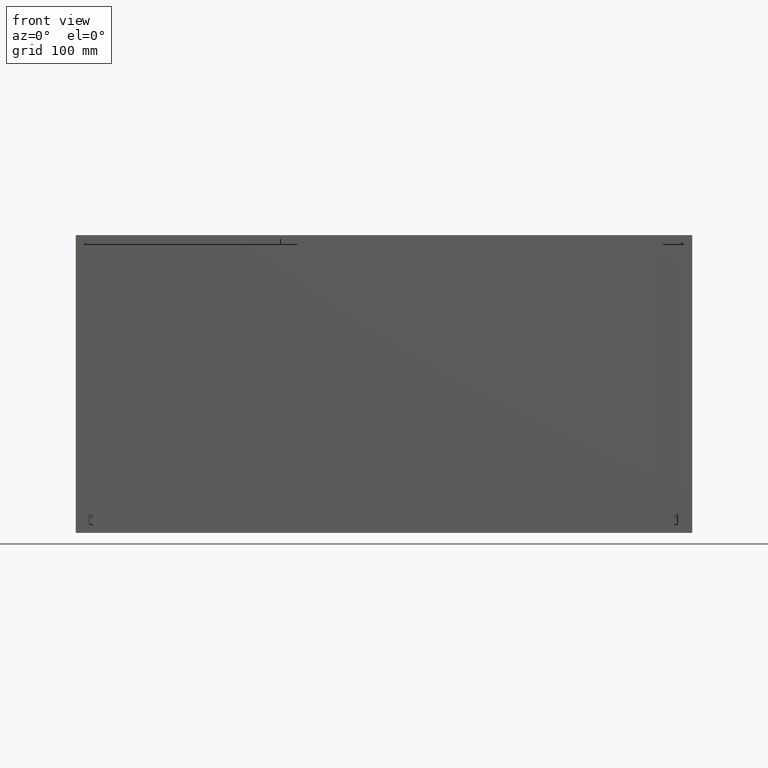
[diagram: clean part render]
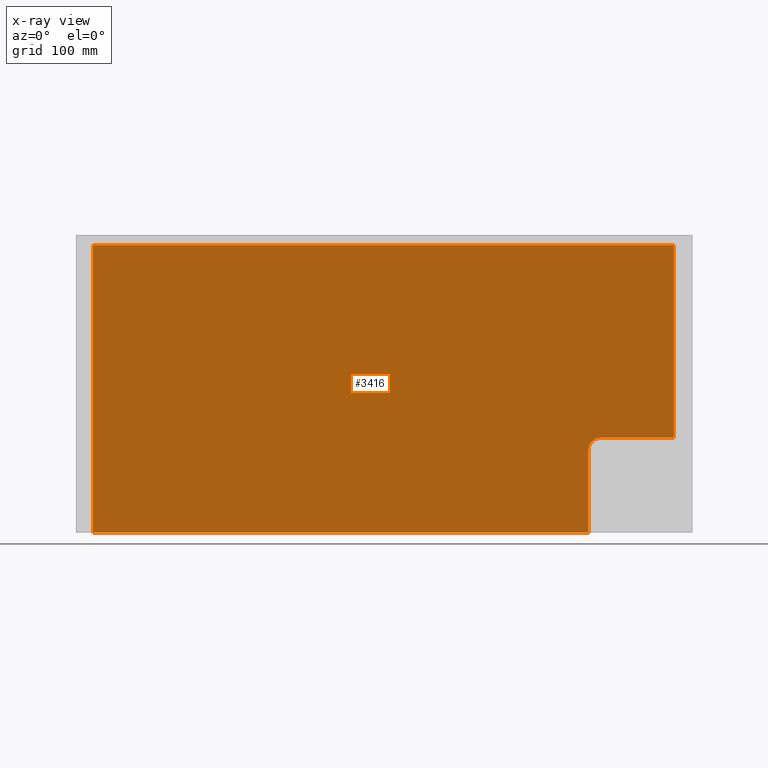
[diagram: x-ray — body ghosted, one internal face saturated and labeled with its STEP entity id]
A machine part, front view, then the same camera in x-ray: the body is ghosted and one INTERNAL B-rep face — a face not visible from any outside direction — is saturated and labeled: STEP entity #3416.
In plain terms, the highlighted planar face has unit normal (0, 1, 0).
Its self-contained STEP definition (entity closure, byte-faithful):
#286 = CARTESIAN_POINT ( 'NONE',  ( 831.0000000000000000, 292.0000000000000000, -319.9999999999999432 ) ) ;
#550 = VECTOR ( 'NONE', #4517, 1000.000000000000000 ) ;
#1174 = VECTOR ( 'NONE', #6721, 1000.000000000000000 ) ;
#1360 = CARTESIAN_POINT ( 'NONE',  ( 946.0000000000001137, 292.0000000000000000, -470.0000000000000000 ) ) ;
#1685 = EDGE_CURVE ( 'NONE', #15144, #14750, #12803, .T. ) ;
#1835 = CARTESIAN_POINT ( 'NONE',  ( 29.00000000000002487, 292.0000000000000000, -470.0000000000000000 ) ) ;
#2232 = VECTOR ( 'NONE', #6241, 1000.000000000000000 ) ;
#2384 = DIRECTION ( 'NONE',  ( 0.0000000000000000000, 0.0000000000000000000, 1.000000000000000000 ) ) ;
#2469 = DIRECTION ( 'NONE',  ( 0.0000000000000000000, 1.000000000000000000, 0.0000000000000000000 ) ) ;
#3048 = DIRECTION ( 'NONE',  ( 0.0000000000000000000, -0.0000000000000000000, 1.000000000000000000 ) ) ;
#3089 = LINE ( 'NONE', #7981, #13588 ) ;
#3416 = ADVANCED_FACE ( 'NONE', ( #3663 ), #8555, .T. ) ;
#3663 = FACE_OUTER_BOUND ( 'NONE', #13752, .T. ) ;
#3954 = VERTEX_POINT ( 'NONE', #8650 ) ;
#4037 = ORIENTED_EDGE ( 'NONE', *, *, #7506, .T. ) ;
#4044 = CARTESIAN_POINT ( 'NONE',  ( 29.00000000000002487, 292.0000000000000000, -470.0000000000000000 ) ) ;
#4060 = VERTEX_POINT ( 'NONE', #4486 ) ;
#4277 = CIRCLE ( 'NONE', #13242, 20.00000000000001776 ) ;
#4359 = EDGE_CURVE ( 'NONE', #14750, #7535, #15049, .T. ) ;
#4476 = ORIENTED_EDGE ( 'NONE', *, *, #4570, .F. ) ;
#4486 = CARTESIAN_POINT ( 'NONE',  ( 946.0000000000001137, 292.0000000000000000, -16.00000000000001421 ) ) ;
#4517 = DIRECTION ( 'NONE',  ( 1.000000000000000000, -0.0000000000000000000, 0.0000000000000000000 ) ) ;
#4570 = EDGE_CURVE ( 'NONE', #3954, #7944, #4277, .T. ) ;
#4897 = CARTESIAN_POINT ( 'NONE',  ( 811.0000000000000000, 292.0000000000000000, -470.0000000000000000 ) ) ;
#5452 = CARTESIAN_POINT ( 'NONE',  ( 29.00000000000002487, 292.0000000000000000, -470.0000000000000000 ) ) ;
#5480 = ORIENTED_EDGE ( 'NONE', *, *, #11592, .T. ) ;
#6241 = DIRECTION ( 'NONE',  ( -0.0000000000000000000, -0.0000000000000000000, -1.000000000000000000 ) ) ;
#6721 = DIRECTION ( 'NONE',  ( -1.000000000000000000, -0.0000000000000000000, -0.0000000000000000000 ) ) ;
#7233 = ORIENTED_EDGE ( 'NONE', *, *, #11230, .F. ) ;
#7346 = DIRECTION ( 'NONE',  ( 0.0000000000000000000, -0.0000000000000000000, 1.000000000000000000 ) ) ;
#7506 = EDGE_CURVE ( 'NONE', #4060, #11506, #12326, .T. ) ;
#7535 = VERTEX_POINT ( 'NONE', #11125 ) ;
#7944 = VERTEX_POINT ( 'NONE', #286 ) ;
#7981 = CARTESIAN_POINT ( 'NONE',  ( 29.00000000000002487, 292.0000000000000000, -16.00000000000001421 ) ) ;
#8459 = CARTESIAN_POINT ( 'NONE',  ( 831.0000000000000000, 292.0000000000000000, -339.9999999999999432 ) ) ;
#8555 = PLANE ( 'NONE',  #12551 ) ;
#8650 = CARTESIAN_POINT ( 'NONE',  ( 811.0000000000000000, 292.0000000000000000, -339.9999999999999432 ) ) ;
#8938 = DIRECTION ( 'NONE',  ( 0.0000000000000000000, 0.0000000000000000000, 1.000000000000000000 ) ) ;
#9138 = LINE ( 'NONE', #14030, #12810 ) ;
#10131 = CARTESIAN_POINT ( 'NONE',  ( 946.0000000000001137, 292.0000000000000000, -319.9999999999999432 ) ) ;
#10611 = LINE ( 'NONE', #15519, #550 ) ;
#11125 = CARTESIAN_POINT ( 'NONE',  ( 29.00000000000002487, 292.0000000000000000, -16.00000000000001421 ) ) ;
#11230 = EDGE_CURVE ( 'NONE', #15144, #3954, #9138, .T. ) ;
#11506 = VERTEX_POINT ( 'NONE', #10131 ) ;
#11592 = EDGE_CURVE ( 'NONE', #7535, #4060, #3089, .T. ) ;
#12326 = LINE ( 'NONE', #1360, #2232 ) ;
#12551 = AXIS2_PLACEMENT_3D ( 'NONE', #13448, #2469, #7346 ) ;
#12803 = LINE ( 'NONE', #1835, #1174 ) ;
#12810 = VECTOR ( 'NONE', #3048, 1000.000000000000000 ) ;
#12862 = DIRECTION ( 'NONE',  ( 1.000000000000000000, 0.0000000000000000000, 0.0000000000000000000 ) ) ;
#12870 = EDGE_CURVE ( 'NONE', #7944, #11506, #10611, .T. ) ;
#13242 = AXIS2_PLACEMENT_3D ( 'NONE', #8459, #13359, #2384 ) ;
#13359 = DIRECTION ( 'NONE',  ( 0.0000000000000000000, 1.000000000000000000, 0.0000000000000000000 ) ) ;
#13448 = CARTESIAN_POINT ( 'NONE',  ( 0.0000000000000000000, 292.0000000000000000, 0.0000000000000000000 ) ) ;
#13588 = VECTOR ( 'NONE', #12862, 1000.000000000000000 ) ;
#13752 = EDGE_LOOP ( 'NONE', ( #4037, #15542, #4476, #7233, #13980, #14885, #5480 ) ) ;
#13980 = ORIENTED_EDGE ( 'NONE', *, *, #1685, .T. ) ;
#14030 = CARTESIAN_POINT ( 'NONE',  ( 811.0000000000000000, 292.0000000000000000, 0.0000000000000000000 ) ) ;
#14750 = VERTEX_POINT ( 'NONE', #5452 ) ;
#14885 = ORIENTED_EDGE ( 'NONE', *, *, #4359, .T. ) ;
#15049 = LINE ( 'NONE', #4044, #15424 ) ;
#15144 = VERTEX_POINT ( 'NONE', #4897 ) ;
#15424 = VECTOR ( 'NONE', #8938, 1000.000000000000000 ) ;
#15519 = CARTESIAN_POINT ( 'NONE',  ( 0.0000000000000000000, 292.0000000000000000, -319.9999999999999432 ) ) ;
#15542 = ORIENTED_EDGE ( 'NONE', *, *, #12870, .F. ) ;